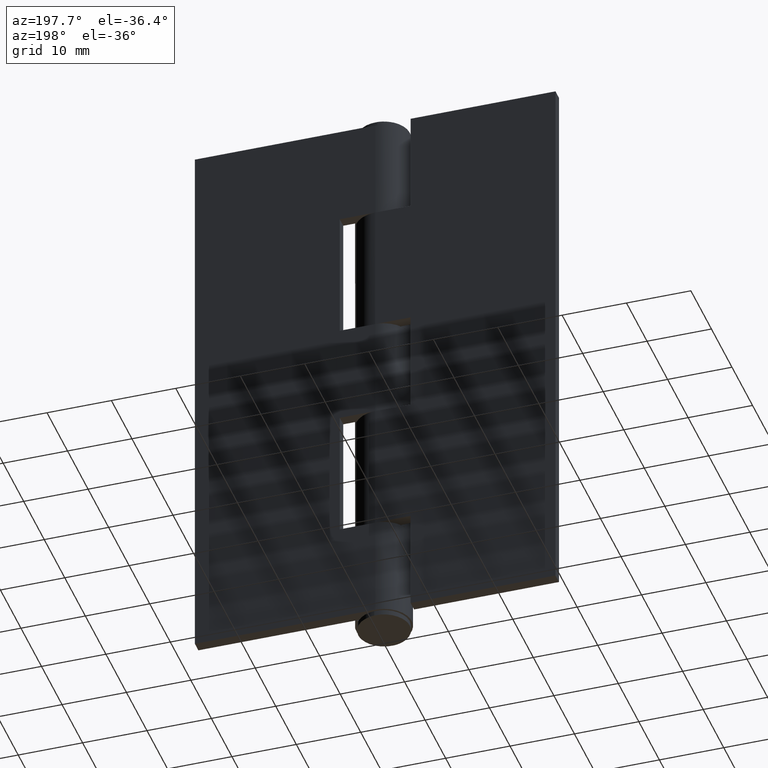
[diagram: clean part render]
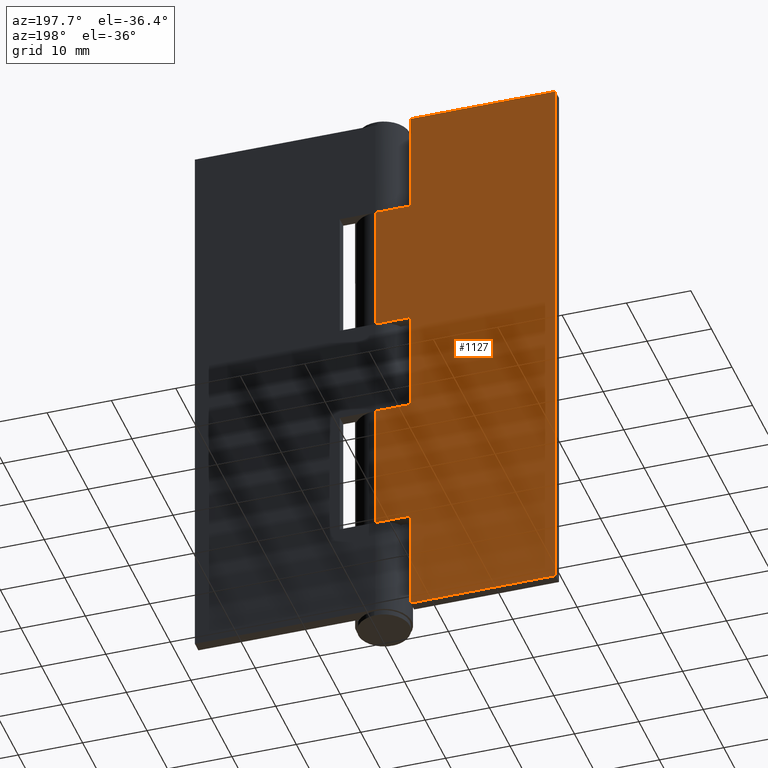
[diagram: same view with one face highlighted and labeled with its STEP entity id]
A machine part, auxiliary view. The second image highlights one B-rep face of the part: STEP entity #1127.
In plain terms, the highlighted face is a freeform B-spline surface patch.
Its self-contained STEP definition (entity closure, byte-faithful):
#437=CARTESIAN_POINT('',(0.002932575507883,4.299999000000000,16.0));
#438=VERTEX_POINT('',#437);
#519=CARTESIAN_POINT('',(-5.500000000000000,4.299999000000000,16.0));
#520=VERTEX_POINT('',#519);
#526=CARTESIAN_POINT('',(-5.500000000000000,4.299999000000000,16.0));
#527=CARTESIAN_POINT('',(0.002932575507883,4.299999000000000,16.0));
#528=QUASI_UNIFORM_CURVE('',1,(#526,#527),.UNSPECIFIED.,.F.,.U.);
#529=EDGE_CURVE('',#520,#438,#528,.T.);
#541=CARTESIAN_POINT('',(-5.500000000000000,4.299999000000000,1.055911E-015));
#542=VERTEX_POINT('',#541);
#548=CARTESIAN_POINT('',(-5.500000000000000,4.299999000000000,1.055911E-015));
#549=CARTESIAN_POINT('',(-5.500000000000000,4.299999000000000,16.0));
#550=QUASI_UNIFORM_CURVE('',1,(#548,#549),.UNSPECIFIED.,.F.,.U.);
#551=EDGE_CURVE('',#542,#520,#550,.T.);
#569=CARTESIAN_POINT('',(-5.500000000000000,4.299999000000000,73.0));
#570=VERTEX_POINT('',#569);
#576=CARTESIAN_POINT('',(-5.500000000000000,4.299999000000000,89.0));
#577=VERTEX_POINT('',#576);
#578=CARTESIAN_POINT('',(-5.500000000000000,4.299999000000000,73.0));
#579=CARTESIAN_POINT('',(-5.500000000000000,4.299999000000000,89.0));
#580=QUASI_UNIFORM_CURVE('',1,(#578,#579),.UNSPECIFIED.,.F.,.U.);
#581=EDGE_CURVE('',#570,#577,#580,.T.);
#643=CARTESIAN_POINT('',(0.002932575507883,4.299999000000000,73.0));
#644=VERTEX_POINT('',#643);
#679=CARTESIAN_POINT('',(0.002932575507883,4.299999000000000,73.0));
#680=CARTESIAN_POINT('',(-5.500000000000000,4.299999000000000,73.0));
#681=QUASI_UNIFORM_CURVE('',1,(#679,#680),.UNSPECIFIED.,.F.,.U.);
#682=EDGE_CURVE('',#644,#570,#681,.T.);
#700=CARTESIAN_POINT('',(-5.500000000000000,4.299999000000000,52.500000000000000));
#701=VERTEX_POINT('',#700);
#707=CARTESIAN_POINT('',(0.002932575507883,4.299999000000000,52.500000000000000));
#708=VERTEX_POINT('',#707);
#709=CARTESIAN_POINT('',(-5.500000000000000,4.299999000000000,52.500000000000000));
#710=CARTESIAN_POINT('',(0.002932575507883,4.299999000000000,52.500000000000000));
#711=QUASI_UNIFORM_CURVE('',1,(#709,#710),.UNSPECIFIED.,.F.,.U.);
#712=EDGE_CURVE('',#701,#708,#711,.T.);
#840=CARTESIAN_POINT('',(0.002932575507883,4.299999000000000,36.500000000000000));
#841=VERTEX_POINT('',#840);
#876=CARTESIAN_POINT('',(-5.500000000000000,4.299999000000000,36.500000000000000));
#877=VERTEX_POINT('',#876);
#878=CARTESIAN_POINT('',(0.002932575507883,4.299999000000000,36.500000000000000));
#879=CARTESIAN_POINT('',(-5.500000000000000,4.299999000000000,36.500000000000000));
#880=QUASI_UNIFORM_CURVE('',1,(#878,#879),.UNSPECIFIED.,.F.,.U.);
#881=EDGE_CURVE('',#841,#877,#880,.T.);
#904=CARTESIAN_POINT('',(-5.500000000000000,4.299999000000000,36.500000000000000));
#905=CARTESIAN_POINT('',(-5.500000000000000,4.299999000000000,52.500000000000000));
#906=QUASI_UNIFORM_CURVE('',1,(#904,#905),.UNSPECIFIED.,.F.,.U.);
#907=EDGE_CURVE('',#877,#701,#906,.T.);
#931=CARTESIAN_POINT('',(-28.0,4.299999000000000,0.0));
#932=VERTEX_POINT('',#931);
#938=CARTESIAN_POINT('',(-5.500000000000000,4.299999000000000,1.055911E-015));
#939=CARTESIAN_POINT('',(-28.0,4.299999000000000,0.0));
#940=QUASI_UNIFORM_CURVE('',1,(#938,#939),.UNSPECIFIED.,.F.,.U.);
#941=EDGE_CURVE('',#542,#932,#940,.T.);
#959=CARTESIAN_POINT('',(-28.0,4.299999000000000,89.0));
#960=VERTEX_POINT('',#959);
#961=CARTESIAN_POINT('',(-5.500000000000000,4.299999000000000,89.0));
#962=CARTESIAN_POINT('',(-28.0,4.299999000000000,89.0));
#963=QUASI_UNIFORM_CURVE('',1,(#961,#962),.UNSPECIFIED.,.F.,.U.);
#964=EDGE_CURVE('',#577,#960,#963,.T.);
#1003=CARTESIAN_POINT('',(0.002932575507883,4.299999000000000,73.0));
#1004=CARTESIAN_POINT('',(0.002932575507883,4.299999000000000,52.500000000000000));
#1005=QUASI_UNIFORM_CURVE('',1,(#1003,#1004),.UNSPECIFIED.,.F.,.U.);
#1006=EDGE_CURVE('',#644,#708,#1005,.T.);
#1096=CARTESIAN_POINT('',(-28.0,4.299999000000000,89.0));
#1097=CARTESIAN_POINT('',(-28.0,4.299999000000000,0.0));
#1098=QUASI_UNIFORM_CURVE('',1,(#1096,#1097),.UNSPECIFIED.,.F.,.U.);
#1099=EDGE_CURVE('',#960,#932,#1098,.T.);
#1104=CARTESIAN_POINT('',(-29.398746427871501,4.299999000000000,93.445549827500756));
#1105=CARTESIAN_POINT('',(-29.398746427871501,4.299999000000000,-4.445552214666751));
#1106=CARTESIAN_POINT('',(1.401679754476566,4.299999000000000,93.445549827500756));
#1107=CARTESIAN_POINT('',(1.401679754476566,4.299999000000000,-4.445552214666751));
#1108=B_SPLINE_SURFACE_WITH_KNOTS('',1,1,((#1104,#1106),(#1105,#1107)),.UNSPECIFIED.,.F.,.F.,.U.,(2,2),(2,2),(0.0,97.891102042167503),(0.0,30.800426182348069),.UNSPECIFIED.);
#1109=ORIENTED_EDGE('',*,*,#529,.F.);
#1110=ORIENTED_EDGE('',*,*,#551,.F.);
#1111=ORIENTED_EDGE('',*,*,#941,.T.);
#1112=ORIENTED_EDGE('',*,*,#1099,.F.);
#1113=ORIENTED_EDGE('',*,*,#964,.F.);
#1114=ORIENTED_EDGE('',*,*,#581,.F.);
#1115=ORIENTED_EDGE('',*,*,#682,.F.);
#1116=ORIENTED_EDGE('',*,*,#1006,.T.);
#1117=ORIENTED_EDGE('',*,*,#712,.F.);
#1118=ORIENTED_EDGE('',*,*,#907,.F.);
#1119=ORIENTED_EDGE('',*,*,#881,.F.);
#1120=CARTESIAN_POINT('',(0.002932575507883,4.299999000000000,36.500000000000000));
#1121=CARTESIAN_POINT('',(0.002932575507883,4.299999000000000,16.0));
#1122=QUASI_UNIFORM_CURVE('',1,(#1120,#1121),.UNSPECIFIED.,.F.,.U.);
#1123=EDGE_CURVE('',#841,#438,#1122,.T.);
#1124=ORIENTED_EDGE('',*,*,#1123,.T.);
#1125=EDGE_LOOP('',(#1109,#1110,#1111,#1112,#1113,#1114,#1115,#1116,#1117,#1118,#1119,#1124));
#1126=FACE_OUTER_BOUND('',#1125,.T.);
#1127=ADVANCED_FACE('',(#1126),#1108,.F.);